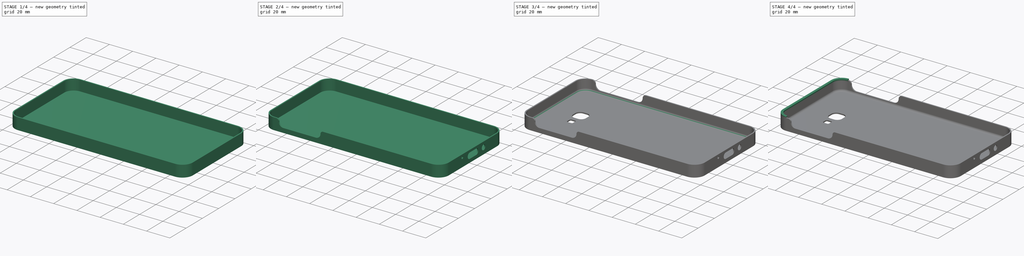
[diagram: build sequence overview — one tinted view per stage of 4, left to right]
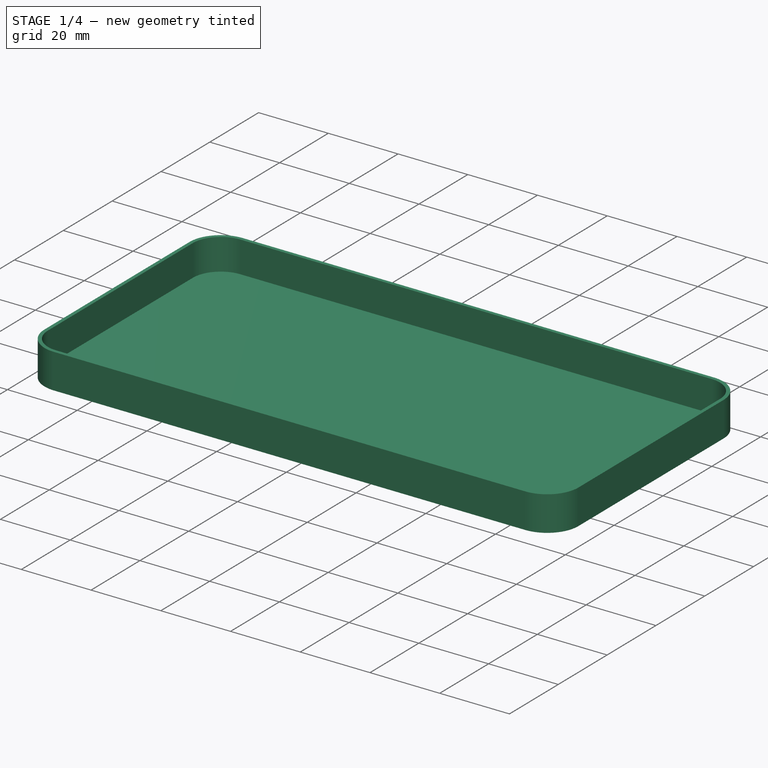
[diagram: stage 1 of 4 — iso view after this stage's code; geometry added in this stage tinted green]
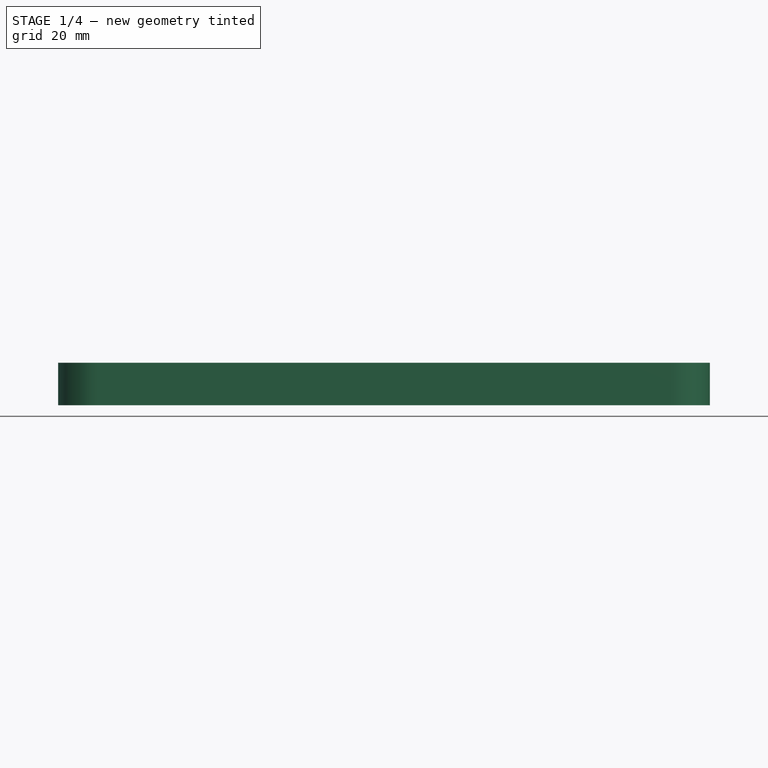
[diagram: stage 1 of 4 — front view after this stage's code; geometry added in this stage tinted green]
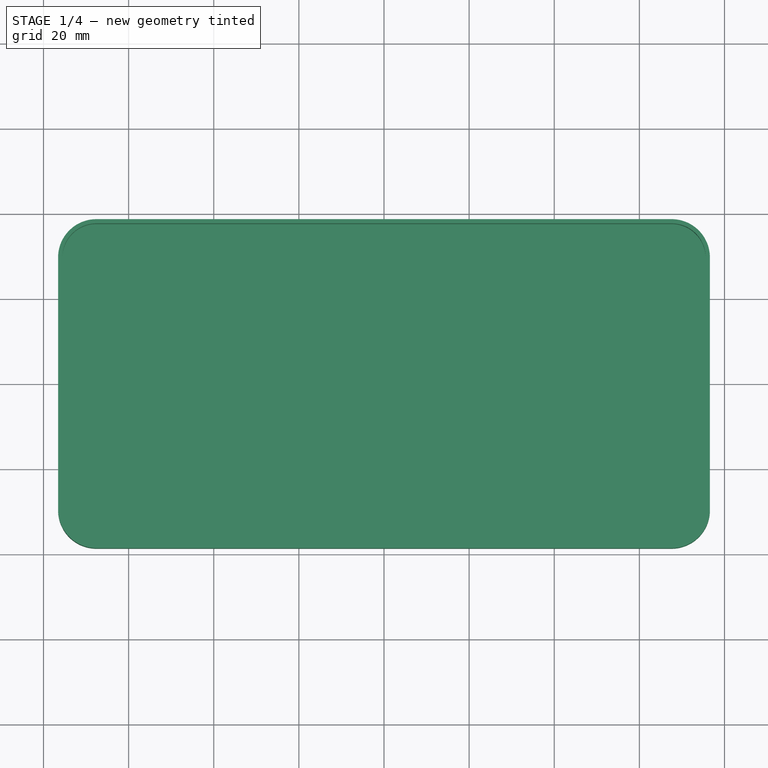
[diagram: stage 1 of 4 — top view after this stage's code; geometry added in this stage tinted green]
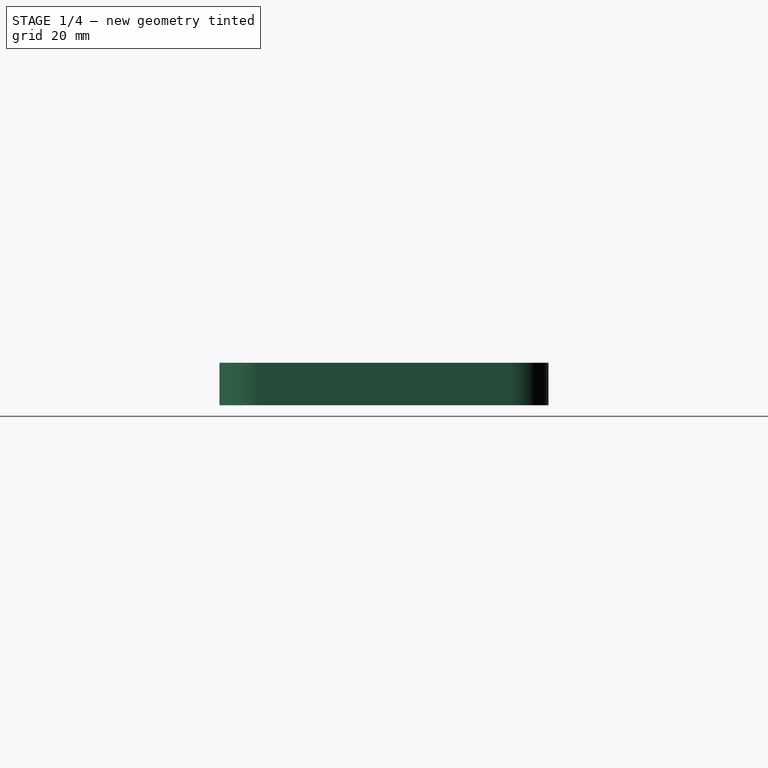
[diagram: stage 1 of 4 — right view after this stage's code; geometry added in this stage tinted green]
FCSTD DOCUMENT  (FreeCAD 0.18R16117 (Git))
Label: Coque telephone 3
License: All rights reserved
LicenseURL: http://en.wikipedia.org/wiki/All_rights_reserved
objects: Sketcher::SketchObject×7, PartDesign::Pocket×4, PartDesign::Pad×3, PartDesign::Fillet×2, PartDesign::Body×1
note: 24 computed .brp shape members not serialized (recipe doc carries the construction recipe); baked Part::Feature solids carry a one-line shape summary decoded from their .brp

FEATURE [Sketcher::SketchObject] Sketch
  MapMode = 5
  Support = -> [XY_Plane]
  sketch-geometry (16):
    g0: LineSegment StartX=-67.575 StartY=38.65 StartZ=0 EndX=67.575 EndY=38.65 EndZ=0
    g1: LineSegment StartX=76.575 StartY=29.65 StartZ=0 EndX=76.575 EndY=-29.65 EndZ=0
    g2: LineSegment StartX=67.575 StartY=-38.65 StartZ=0 EndX=-67.575 EndY=-38.65 EndZ=0
    g3: LineSegment StartX=-76.575 StartY=-29.65 StartZ=0 EndX=-76.575 EndY=29.65 EndZ=0
    g4: LineSegment StartX=-67.575 StartY=37.65 StartZ=0 EndX=67.575 EndY=37.65 EndZ=0
    g5: LineSegment StartX=75.575 StartY=29.65 StartZ=0 EndX=75.575 EndY=-29.65 EndZ=0
    g6: LineSegment StartX=67.575 StartY=-37.65 StartZ=0 EndX=-67.575 EndY=-37.65 EndZ=0
    g7: LineSegment StartX=-75.575 StartY=-29.65 StartZ=0 EndX=-75.575 EndY=29.65 EndZ=0
    g8: ArcOfCircle CenterX=-67.575 CenterY=29.65 CenterZ=0 NormalX=0 NormalY=0 NormalZ=1 AngleXU=0 Radius=8 StartAngle=1.5708 EndAngle=3.14159
    g9: ArcOfCircle CenterX=-67.575 CenterY=29.65 CenterZ=0 NormalX=0 NormalY=0 NormalZ=1 AngleXU=0 Radius=9 StartAngle=1.5708 EndAngle=3.14159
    g10: ArcOfCircle CenterX=-67.575 CenterY=-29.65 CenterZ=0 NormalX=0 NormalY=0 NormalZ=1 AngleXU=0 Radius=9 StartAngle=3.14159 EndAngle=4.71239
    g11: ArcOfCircle CenterX=67.575 CenterY=-29.65 CenterZ=0 NormalX=0 NormalY=0 NormalZ=1 AngleXU=0 Radius=9 StartAngle=4.71239 EndAngle=6.28319
    g12: ArcOfCircle CenterX=67.575 CenterY=29.65 CenterZ=0 NormalX=0 NormalY=0 NormalZ=1 AngleXU=0 Radius=9 StartAngle=0 EndAngle=1.5708
    g13: ArcOfCircle CenterX=67.575 CenterY=29.65 CenterZ=0 NormalX=0 NormalY=0 NormalZ=1 AngleXU=0 Radius=8 StartAngle=0 EndAngle=1.5708
    g14: ArcOfCircle CenterX=67.575 CenterY=-29.65 CenterZ=0 NormalX=0 NormalY=0 NormalZ=1 AngleXU=0 Radius=8 StartAngle=4.71239 EndAngle=6.28319
    g15: ArcOfCircle CenterX=-67.575 CenterY=-29.65 CenterZ=0 NormalX=0 NormalY=0 NormalZ=1 AngleXU=0 Radius=8 StartAngle=3.14159 EndAngle=4.71239
  constraints (34):
    c: Horizontal(g2)
    c: Horizontal(g4)
    c: Tangent(g4,g8) = 1.5708
    c: Tangent(g7,g8) = 1.5708
    c: Tangent(g0,g9) = 1.5708
    c: Tangent(g3,g9) = 1.5708
    c: Tangent(g2,g10) = 1.5708
    c: Tangent(g3,g10) = 1.5708
    c: Tangent(g1,g11) = 1.5708
    c: Tangent(g2,g11) = 1.5708
    c: Tangent(g0,g12) = 1.5708
    c: Tangent(g1,g12) = 1.5708
    c: Tangent(g4,g13) = 1.5708
    c: Tangent(g5,g13) = 1.5708
    c: Tangent(g5,g14) = 1.5708
    c: Tangent(g6,g14) = 1.5708
    c: Tangent(g6,g15) = 1.5708
    c: Tangent(g7,g15) = 1.5708
    c: DistanceX(g3,g10) = 9
    c: DistanceX(g7,g15) = 8
    c: Coincident(g15,g10)
    c: Vertical(g3)
    c: Symmetric(g7,g7,g-1)
    c: Horizontal(g6)
    c: Horizontal(g0)
    c: Vertical(g5)
    c: Coincident(g8,g9)
    c: Coincident(g12,g13)
    c: Coincident(g14,g11)
    c: Vertical(g10,g8)
    c: Vertical(g11,g12)
    c: Symmetric(g8,g12,g-2)
    c: DistanceX(g7,g5) = 151.15
    c: DistanceY(g6,g4) = 75.3
FEATURE [PartDesign::Pad] Pad  label="Murs"
  Length = 10
  Length2 = 100
  Profile = -> Sketch
  Type = 0
FEATURE [Sketcher::SketchObject] Sketch001
  ExternalGeometry = -> [Pad]
  MapMode = 5
  Placement = pos=(0,0,0) rot=(1,0,0;3.14159rad)
  Support = -> [Pad]
  sketch-geometry (9):
    g0: ArcOfCircle CenterX=-67.575 CenterY=29.65 CenterZ=0 NormalX=0 NormalY=0 NormalZ=1 AngleXU=0 Radius=9 StartAngle=1.5708 EndAngle=3.14159
    g1: ArcOfCircle CenterX=-67.575 CenterY=-29.65 CenterZ=0 NormalX=0 NormalY=0 NormalZ=1 AngleXU=0 Radius=9 StartAngle=3.14159 EndAngle=4.71239
    g2: ArcOfCircle CenterX=67.575 CenterY=-29.65 CenterZ=0 NormalX=0 NormalY=0 NormalZ=1 AngleXU=0 Radius=9 StartAngle=4.71239 EndAngle=6.28318
    g3: ArcOfCircle CenterX=67.575 CenterY=29.65 CenterZ=0 NormalX=0 NormalY=0 NormalZ=1 AngleXU=0 Radius=9 StartAngle=-9e-16 EndAngle=1.5708
    g4: LineSegment [constr] StartX=-67.575 StartY=29.65 StartZ=0 EndX=-76.575 EndY=29.65 EndZ=0
    g5: LineSegment StartX=-67.575 StartY=38.65 StartZ=0 EndX=67.575 EndY=38.65 EndZ=0
    g6: LineSegment StartX=-67.575 StartY=-38.65 StartZ=0 EndX=67.575 EndY=-38.65 EndZ=0
    g7: LineSegment StartX=76.575 StartY=-29.65 StartZ=0 EndX=76.575 EndY=29.65 EndZ=0
    g8: LineSegment StartX=-76.575 StartY=29.65 StartZ=0 EndX=-76.575 EndY=-29.65 EndZ=0
  constraints (25):
    c: Coincident(g0,g-3)
    c: Vertical(g0,g0)
    c: Coincident(g-10,g1)
    c: Coincident(g4,g0)
    c: Coincident(g-4,g4)
    c: Coincident(g0,g4)
    c: Horizontal(g3,g0)
    c: Horizontal(g3,g0)
    c: Coincident(g3,g-7)
    c: Equal(g3,g0)
    c: Coincident(g2,g-9)
    c: Equal(g2,g0)
    c: Vertical(g2,g3)
    c: Horizontal(g2,g-10)
    c: Equal(g1,g0)
    c: Vertical(g1,g1)
    c: Horizontal(g1,g1)
    c: Coincident(g5,g0)
    c: Coincident(g5,g3)
    c: Coincident(g7,g3)
    c: Coincident(g7,g2)
    c: Coincident(g6,g2)
    c: Coincident(g6,g1)
    c: Coincident(g8,g1)
    c: Coincident(g8,g0)
FEATURE [PartDesign::Pad] Pad001  label="Fond"
  BaseFeature = -> Pad
  Length = 1
  Length2 = 100
  Profile = -> Sketch001
  Reversed = true
  Type = 0
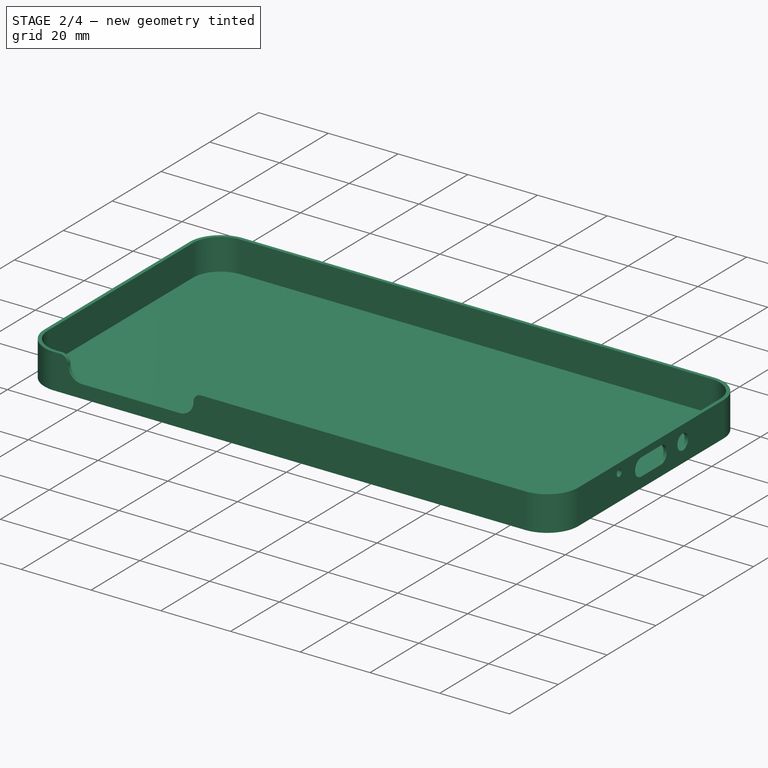
[diagram: stage 2 of 4 — iso view after this stage's code; geometry added in this stage tinted green]
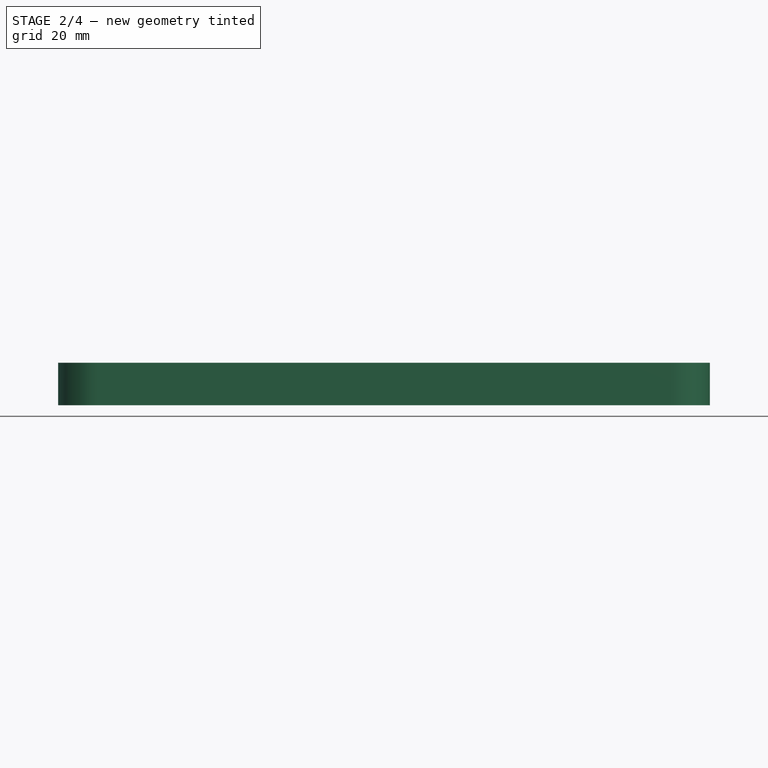
[diagram: stage 2 of 4 — front view after this stage's code; geometry added in this stage tinted green]
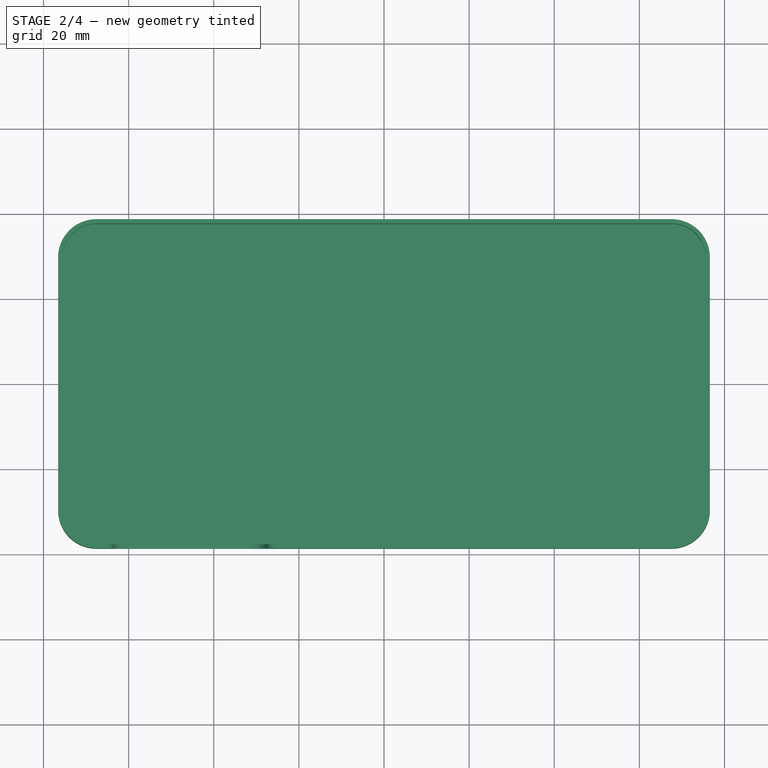
[diagram: stage 2 of 4 — top view after this stage's code; geometry added in this stage tinted green]
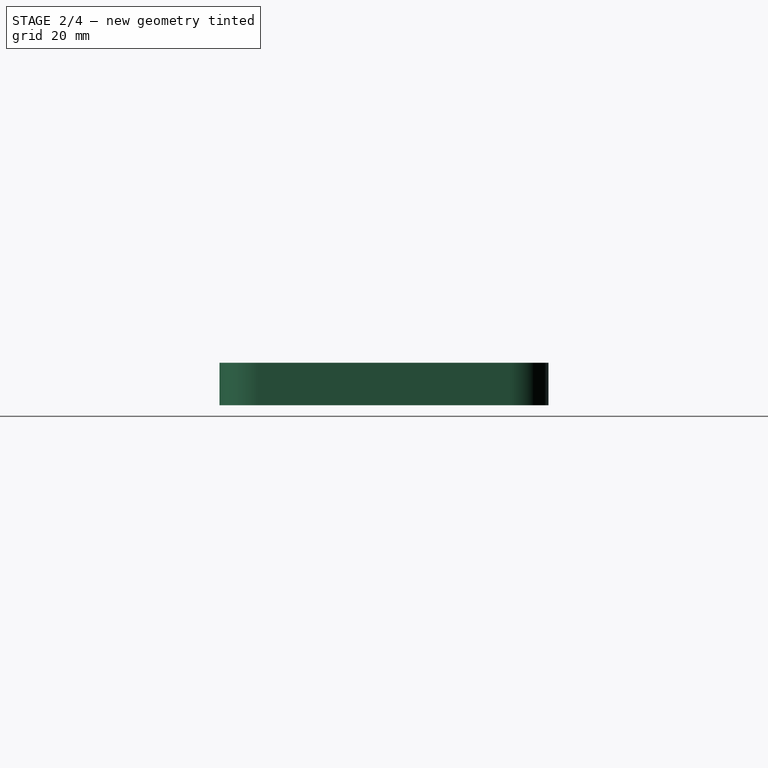
[diagram: stage 2 of 4 — right view after this stage's code; geometry added in this stage tinted green]
FEATURE [Sketcher::SketchObject] Sketch002
  ExternalGeometry = -> [Pad001]
  MapMode = 5
  Placement = pos=(0,-38.65,0) rot=(1,0,0;1.5708rad)
  Support = -> [Pad001]
  sketch-geometry (6):
    g0: ArcOfCircle CenterX=-59.575 CenterY=7.8 CenterZ=0 NormalX=0 NormalY=0 NormalZ=1 AngleXU=0 Radius=4 StartAngle=3.14159 EndAngle=4.71239
    g1: ArcOfCircle CenterX=-31.575 CenterY=7.8 CenterZ=0 NormalX=0 NormalY=0 NormalZ=1 AngleXU=0 Radius=4 StartAngle=4.71239 EndAngle=6.28319
    g2: LineSegment StartX=-59.575 StartY=3.8 StartZ=0 EndX=-31.575 EndY=3.8 EndZ=0
    g3: ArcOfCircle CenterX=-65.775 CenterY=7.8 CenterZ=0 NormalX=0 NormalY=0 NormalZ=1 AngleXU=0 Radius=2.2 StartAngle=0 EndAngle=1.5708
    g4: ArcOfCircle CenterX=-25.375 CenterY=7.8 CenterZ=0 NormalX=0 NormalY=0 NormalZ=1 AngleXU=0 Radius=2.2 StartAngle=1.5708 EndAngle=3.14159
    g5: LineSegment StartX=-65.775 StartY=10 StartZ=0 EndX=-25.375 EndY=10 EndZ=0
  constraints (20):
    c: Tangent(g0,g2) = -1.5708
    c: Tangent(g2,g1) = -1.5708
    c: Horizontal(g2)
    c: DistanceY(g1,g1) = 4
    c: DistanceX(g0,g1) = 28
    c: DistanceX(g-3,g0) = 17
    c: DistanceY(g-3,g0) = 2.8
    c: Horizontal(g0,g0)
    c: Equal(g1,g0)
    c: Horizontal(g1,g1)
    c: Coincident(g4,g1)
    c: PointOnObject(g4,g-4)
    c: Coincident(g3,g0)
    c: PointOnObject(g3,g-4)
    c: Vertical(g3,g3)
    c: Horizontal(g3,g0)
    c: Horizontal(g1,g4)
    c: Vertical(g4,g4)
    c: Coincident(g5,g4)
    c: Coincident(g5,g3)
FEATURE [PartDesign::Pocket] Pocket  label="Percage gauche"
  BaseFeature = -> Pad001
  Length = 5
  Length2 = 100
  Profile = -> Sketch002
  Type = 0
FEATURE [Sketcher::SketchObject] Sketch003
  ExternalGeometry = -> [Pocket]
  MapMode = 5
  Placement = pos=(76.575,0,0) rot=(0.57735,0.57735,0.57735;2.0944rad)
  Support = -> [Pocket]
  sketch-geometry (6):
    g0: ArcOfCircle CenterX=-4 CenterY=5.5 CenterZ=0 NormalX=0 NormalY=0 NormalZ=1 AngleXU=0 Radius=2.5 StartAngle=1.5708 EndAngle=4.71239
    g1: ArcOfCircle CenterX=4 CenterY=5.5 CenterZ=0 NormalX=0 NormalY=0 NormalZ=1 AngleXU=0 Radius=2.5 StartAngle=4.71239 EndAngle=7.85398
    g2: LineSegment StartX=-4 StartY=3 StartZ=0 EndX=4 EndY=3 EndZ=0
    g3: LineSegment StartX=-4 StartY=8 StartZ=0 EndX=4 EndY=8 EndZ=0
    g4: Circle CenterX=13 CenterY=5.5 CenterZ=0 NormalX=0 NormalY=0 NormalZ=1 AngleXU=0 Radius=2.2
    g5: Circle CenterX=-13 CenterY=7.4 CenterZ=0 NormalX=0 NormalY=0 NormalZ=1 AngleXU=0 Radius=1
  constraints (19):
    c: DistanceX(g-1,g4) = 13
    c: Coincident(g0,g3)
    c: Coincident(g1,g3)
    c: Coincident(g0,g2)
    c: Coincident(g1,g2)
    c: Vertical(g1,g1)
    c: Vertical(g1,g1)
    c: Vertical(g0,g0)
    c: Vertical(g0,g0)
    c: Horizontal(g2)
    c: DistanceY(g0,g0) = 5
    c: DistanceX(g0,g1) = 8
    c: Symmetric(g0,g1,g-2)
    c: DistanceY(g-1,g1) = 3
    c: Radius(g4) = 2.2
    c: Radius(g5) = 1
    c: DistanceX(g5,g-1) = 13
    c: DistanceY(g-1,g5) = 7.4
    c: DistanceY(g-1,g4) = 5.5
FEATURE [PartDesign::Pocket] Pocket001  label="Percage dessous"
  BaseFeature = -> Pocket
  Length = 5
  Length2 = 100
  Profile = -> Sketch003
  Type = 0
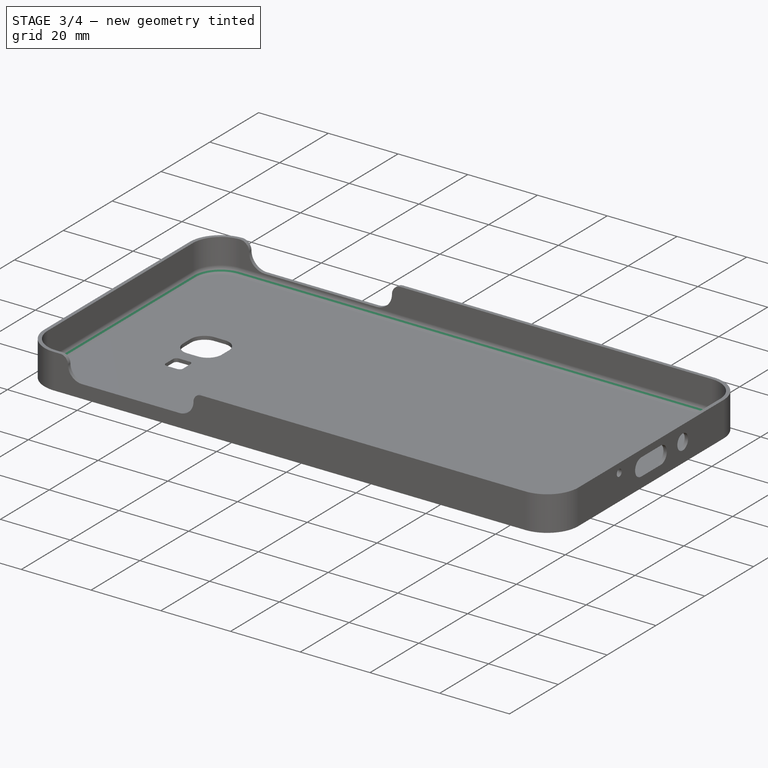
[diagram: stage 3 of 4 — iso view after this stage's code; geometry added in this stage tinted green]
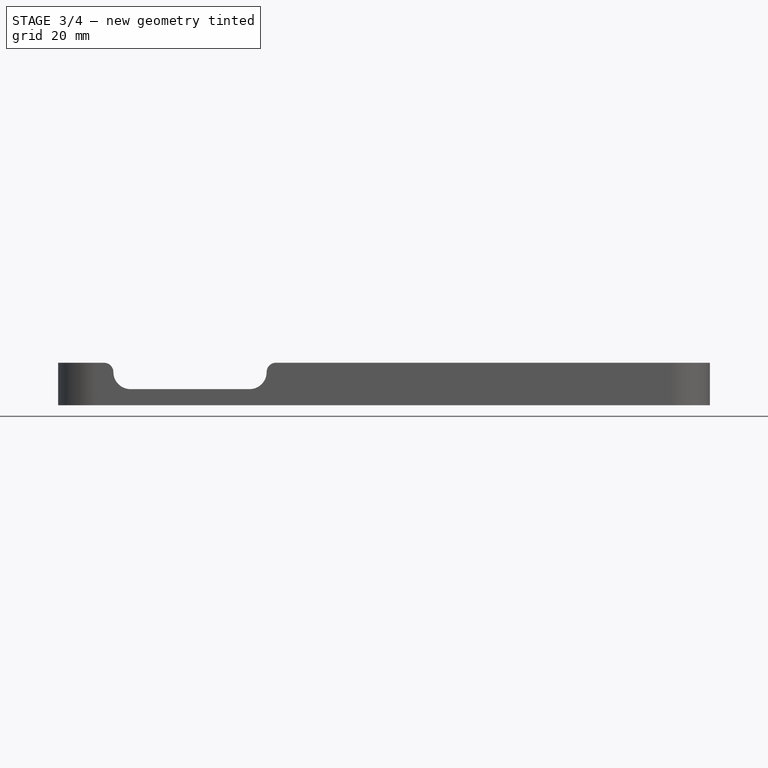
[diagram: stage 3 of 4 — front view after this stage's code; geometry added in this stage tinted green]
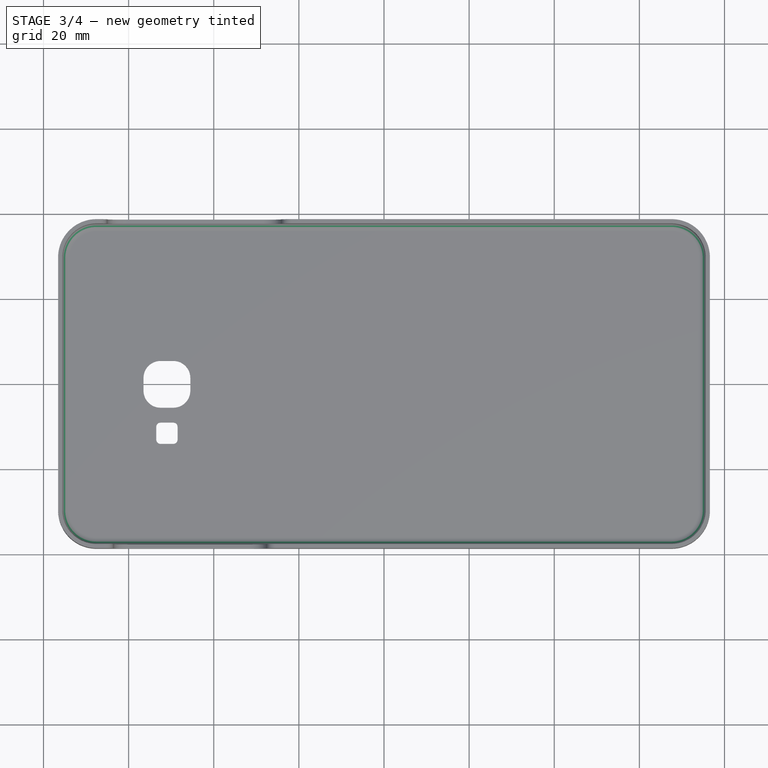
[diagram: stage 3 of 4 — top view after this stage's code; geometry added in this stage tinted green]
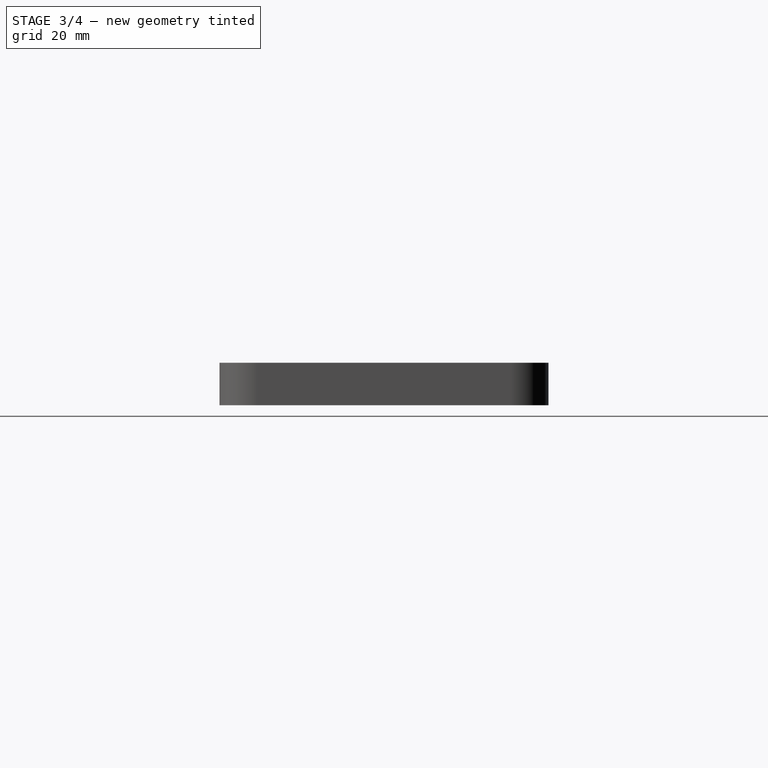
[diagram: stage 3 of 4 — right view after this stage's code; geometry added in this stage tinted green]
FEATURE [Sketcher::SketchObject] Sketch004
  ExternalGeometry = -> [Pocket001]
  MapMode = 5
  Placement = pos=(0,38.65,0) rot=(0,0.707107,0.707107;3.14159rad)
  Support = -> [Pocket001]
  sketch-geometry (6):
    g0: ArcOfCircle CenterX=60.575 CenterY=7.5 CenterZ=0 NormalX=0 NormalY=0 NormalZ=1 AngleXU=0 Radius=4.5 StartAngle=4.71239 EndAngle=6.28319
    g1: LineSegment StartX=28.575 StartY=3 StartZ=0 EndX=60.575 EndY=3 EndZ=0
    g2: ArcOfCircle CenterX=28.575 CenterY=7.5 CenterZ=0 NormalX=0 NormalY=0 NormalZ=1 AngleXU=0 Radius=4.5 StartAngle=3.14159 EndAngle=4.71239
    g3: ArcOfCircle CenterX=21.575 CenterY=7.5 CenterZ=0 NormalX=0 NormalY=0 NormalZ=1 AngleXU=0 Radius=2.5 StartAngle=0 EndAngle=1.5708
    g4: ArcOfCircle CenterX=67.575 CenterY=7.5 CenterZ=0 NormalX=0 NormalY=0 NormalZ=1 AngleXU=0 Radius=2.5 StartAngle=1.5708 EndAngle=3.14159
    g5: LineSegment StartX=21.575 StartY=10 StartZ=0 EndX=67.575 EndY=10 EndZ=0
  constraints (18):
    c: Coincident(g0,g1)
    c: Horizontal(g1)
    c: Coincident(g1,g2)
    c: Horizontal(g2,g0)
    c: DistanceX(g1,g1) = 32
    c: Vertical(g2,g1)
    c: Vertical(g0,g0)
    c: Horizontal(g2,g2)
    c: Horizontal(g0,g0)
    c: Radius(g2) = 4.5
    c: Coincident(g3,g2)
    c: Horizontal(g3,g2)
    c: Vertical(g3,g3)
    c: Coincident(g4,g0)
    c: Horizontal(g4,g0)
    c: Vertical(g4,g4)
    c: Coincident(g5,g3)
    c: Coincident(g5,g4)
FEATURE [PartDesign::Pocket] Pocket002  label="Percage droite"
  BaseFeature = -> Pocket001
  Length = 5
  Length2 = 100
  Profile = -> Sketch004
  Type = 0
FEATURE [PartDesign::Fillet] Fillet  label="Fillet interieur"
  Base = -> Pocket002 [Edge93]
  BaseFeature = -> Pocket002
  Radius = 1.7
FEATURE [Sketcher::SketchObject] Sketch005
  MapMode = 5
  Placement = pos=(0,0,0) rot=(1,0,0;3.14159rad)
  Support = -> [Fillet]
  sketch-geometry (17):
    g0: LineSegment [constr] StartX=-51 StartY=5.5 StartZ=0 EndX=-51 EndY=9 EndZ=0
    g1: LineSegment StartX=-52.5 StartY=-5.5 StartZ=0 EndX=-49.5 EndY=-5.5 EndZ=0
    g2: LineSegment StartX=-45.5 StartY=-1.5 StartZ=0 EndX=-45.5 EndY=1.5 EndZ=0
    g3: LineSegment StartX=-49.5 StartY=5.5 StartZ=0 EndX=-52.5 EndY=5.5 EndZ=0
    g4: LineSegment StartX=-56.5 StartY=1.5 StartZ=0 EndX=-56.5 EndY=-1.5 EndZ=0
    g5: ArcOfCircle CenterX=-52.5 CenterY=1.5 CenterZ=0 NormalX=0 NormalY=0 NormalZ=1 AngleXU=0 Radius=4 StartAngle=1.5708 EndAngle=3.14159
    g6: ArcOfCircle CenterX=-52.5 CenterY=-1.5 CenterZ=0 NormalX=0 NormalY=0 NormalZ=1 AngleXU=0 Radius=4 StartAngle=3.14159 EndAngle=4.71239
    g7: ArcOfCircle CenterX=-49.5 CenterY=-1.5 CenterZ=0 NormalX=0 NormalY=0 NormalZ=1 AngleXU=0 Radius=4 StartAngle=4.71239 EndAngle=6.28319
    g8: ArcOfCircle CenterX=-49.5 CenterY=1.5 CenterZ=0 NormalX=0 NormalY=0 NormalZ=1 AngleXU=0 Radius=4 StartAngle=0 EndAngle=1.5708
    g9: LineSegment StartX=-52.5 StartY=9 StartZ=0 EndX=-49.5 EndY=9 EndZ=0
    g10: LineSegment StartX=-48.5 StartY=10 StartZ=0 EndX=-48.5 EndY=13 EndZ=0
    g11: LineSegment StartX=-49.5 StartY=14 StartZ=0 EndX=-52.5 EndY=14 EndZ=0
    g12: LineSegment StartX=-53.5 StartY=13 StartZ=0 EndX=-53.5 EndY=10 EndZ=0
    g13: ArcOfCircle CenterX=-52.5 CenterY=13 CenterZ=0 NormalX=0 NormalY=0 NormalZ=1 AngleXU=0 Radius=1 StartAngle=1.5708 EndAngle=3.14159
    g14: ArcOfCircle CenterX=-52.5 CenterY=10 CenterZ=0 NormalX=0 NormalY=0 NormalZ=1 AngleXU=0 Radius=1 StartAngle=3.14159 EndAngle=4.71239
    g15: ArcOfCircle CenterX=-49.5 CenterY=10 CenterZ=0 NormalX=0 NormalY=0 NormalZ=1 AngleXU=0 Radius=1 StartAngle=4.71239 EndAngle=6.28319
    g16: ArcOfCircle CenterX=-49.5 CenterY=13 CenterZ=0 NormalX=0 NormalY=0 NormalZ=1 AngleXU=0 Radius=1 StartAngle=7e-16 EndAngle=1.5708
  constraints (41):
    c: DistanceY(g0,g0) = 3.5
    c: Horizontal(g1)
    c: Horizontal(g3)
    c: Vertical(g2)
    c: Tangent(g3,g5) = -1.5708
    c: Tangent(g4,g5) = -1.5708
    c: Tangent(g1,g6) = -1.5708
    c: Tangent(g4,g6) = -1.5708
    c: Tangent(g1,g7) = -1.5708
    c: Tangent(g2,g7) = -1.5708
    c: Tangent(g2,g8) = -1.5708
    c: Tangent(g3,g8) = -1.5708
    c: DistanceX(g4,g2) = 11
    c: DistanceX(g1,g1) = 3
    c: Equal(g4,g1)
    c: Equal(g1,g3)
    c: Equal(g3,g2)
    c: Vertical(g5,g6)
    c: Horizontal(g11)
    c: Vertical(g10)
    c: Vertical(g12)
    c: Tangent(g11,g13) = -1.5708
    c: Tangent(g12,g13) = -1.5708
    c: Tangent(g9,g14) = -1.5708
    c: Tangent(g12,g14) = -1.5708
    c: Tangent(g9,g15) = -1.5708
    c: Tangent(g10,g15) = -1.5708
    c: Tangent(g10,g16) = -1.5708
    c: Tangent(g11,g16) = -1.5708
    c: DistanceY(g9,g11) = 5
    c: DistanceY(g10,g10) = 3
    c: Equal(g10,g11)
    c: Equal(g11,g12)
    c: Equal(g12,g9)
    c: Horizontal(g13,g16)
    c: Symmetric(g4,g4,g-1)
    c: Symmetric(g9,g9,g0)
    c: Symmetric(g3,g3,g0)
    c: PointOnObject(g0,g3)
    c: PointOnObject(g0,g9)
    c: DistanceX(g2,g-1) = 45.5
FEATURE [PartDesign::Pocket] Pocket003  label="Percage fond"
  BaseFeature = -> Fillet
  Length = 5
  Length2 = 100
  Profile = -> Sketch005
  Type = 0
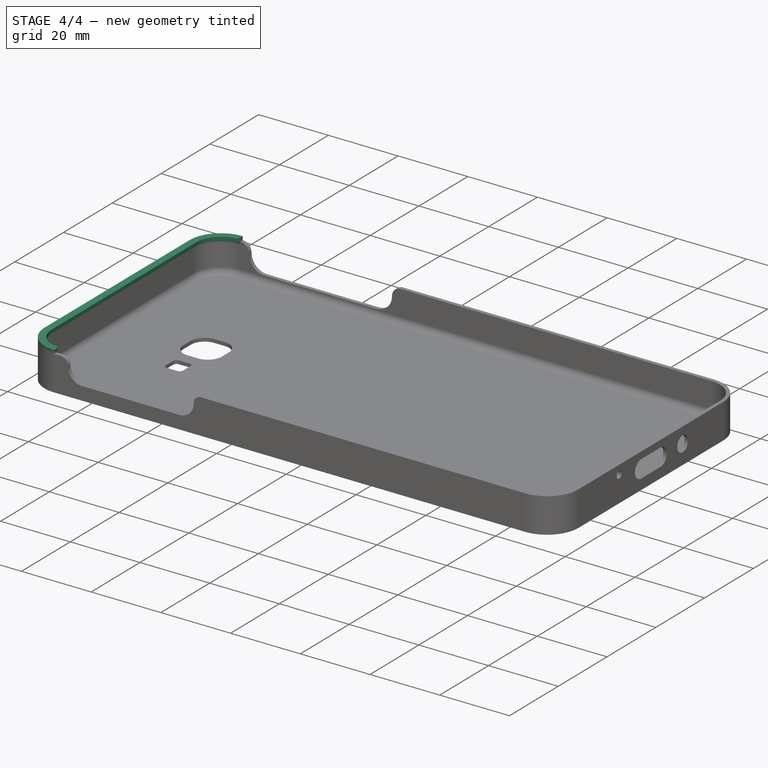
[diagram: stage 4 of 4 — iso view after this stage's code; geometry added in this stage tinted green]
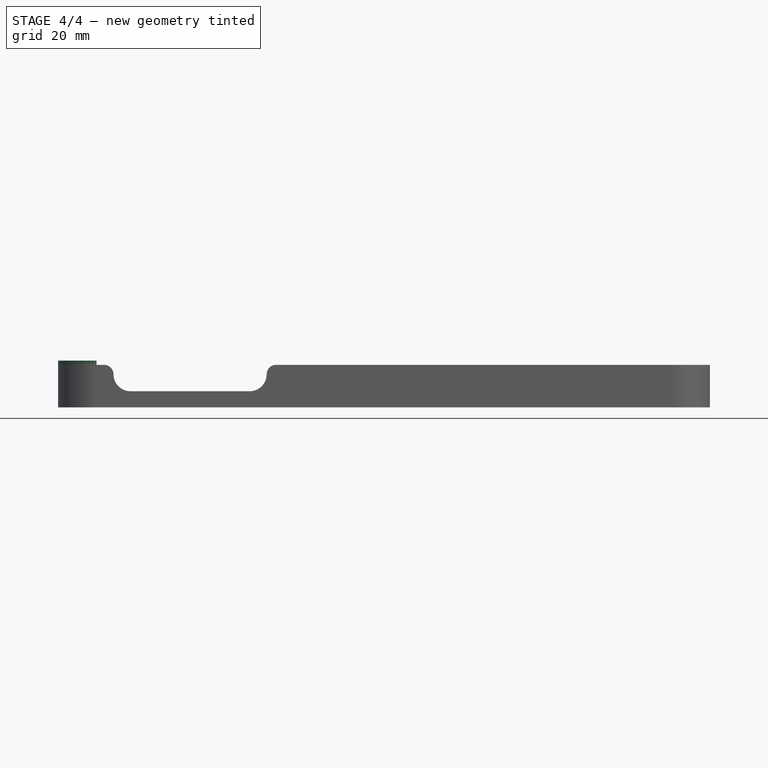
[diagram: stage 4 of 4 — front view after this stage's code; geometry added in this stage tinted green]
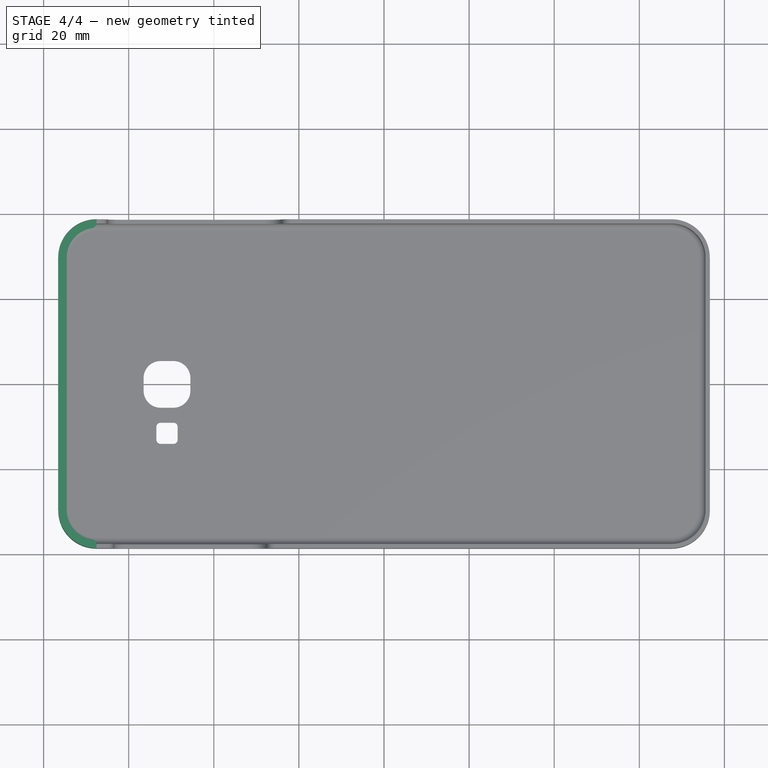
[diagram: stage 4 of 4 — top view after this stage's code; geometry added in this stage tinted green]
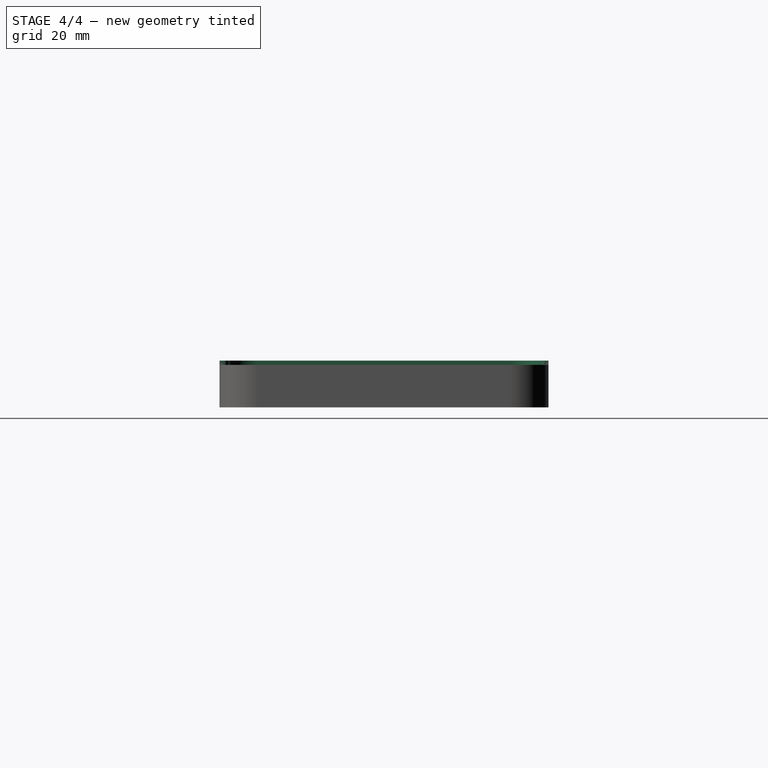
[diagram: stage 4 of 4 — right view after this stage's code; geometry added in this stage tinted green]
FEATURE [Sketcher::SketchObject] Sketch006
  ExternalGeometry = -> [Pocket003]
  MapMode = 5
  Placement = pos=(0,0,10) rot=(0,0,1;0rad)
  Support = -> [Pocket003]
  sketch-geometry (10):
    g0: ArcOfCircle CenterX=-67.575 CenterY=-29.65 CenterZ=0 NormalX=0 NormalY=0 NormalZ=1 AngleXU=0 Radius=9 StartAngle=3.14159 EndAngle=4.71239
    g1: ArcOfCircle CenterX=-67.575 CenterY=29.65 CenterZ=0 NormalX=0 NormalY=0 NormalZ=1 AngleXU=0 Radius=9 StartAngle=1.5708 EndAngle=3.14159
    g2: LineSegment StartX=-76.575 StartY=29.65 StartZ=0 EndX=-76.575 EndY=-29.65 EndZ=0
    g3: ArcOfCircle CenterX=-67.575 CenterY=-29.65 CenterZ=0 NormalX=0 NormalY=0 NormalZ=1 AngleXU=0 Radius=7 StartAngle=3.14159 EndAngle=4.56552
    g4: ArcOfCircle CenterX=-67.575 CenterY=29.65 CenterZ=0 NormalX=0 NormalY=0 NormalZ=1 AngleXU=0 Radius=7 StartAngle=1.71767 EndAngle=3.14159
    g5: LineSegment StartX=-67.575 StartY=37.7617 StartZ=0 EndX=-67.575 EndY=38.65 EndZ=0
    g6: LineSegment StartX=-74.575 StartY=29.65 StartZ=0 EndX=-74.575 EndY=-29.65 EndZ=0
    g7: LineSegment StartX=-67.575 StartY=-38.65 StartZ=0 EndX=-67.575 EndY=-37.7617 EndZ=0
    g8: ArcOfCircle CenterX=-68.775 CenterY=-37.7617 CenterZ=0 NormalX=0 NormalY=0 NormalZ=1 AngleXU=0 Radius=1.2 StartAngle=2.1116e-12 EndAngle=1.42393
    g9: ArcOfCircle CenterX=-68.775 CenterY=37.7617 CenterZ=0 NormalX=0 NormalY=0 NormalZ=1 AngleXU=0 Radius=1.2 StartAngle=4.85926 EndAngle=6.28319
  constraints (26):
    c: Coincident(g1,g2)
    c: Coincident(g1,g-4)
    c: Coincident(g2,g-5)
    c: Coincident(g0,g2)
    c: Coincident(g-5,g0)
    c: Coincident(g1,g-4)
    c: Vertical(g1,g1)
    c: Coincident(g4,g1)
    c: Horizontal(g4,g1)
    c: DistanceX(g1,g4) = 2
    c: Vertical(g5)
    c: Coincident(g5,g1)
    c: Coincident(g3,g0)
    c: Horizontal(g3,g0)
    c: Coincident(g6,g3)
    c: Coincident(g6,g4)
    c: Vertical(g6)
    c: Coincident(g0,g7)
    c: Tangent(g7,g8) = -1.5708
    c: Tangent(g3,g8) = 1.5708
    c: Tangent(g4,g9) = 1.5708
    c: Tangent(g5,g9) = -1.5708
    c: Radius(g9) = 1.2
    c: Vertical(g7)
    c: Vertical(g0,g-5)
    c: Equal(g8,g9)
FEATURE [PartDesign::Pad] Pad002
  BaseFeature = -> Pocket003
  Length = 1
  Length2 = 100
  Profile = -> Sketch006
  Type = 0
FEATURE [PartDesign::Fillet] Fillet001
  Base = -> Pad002 [Edge50]
  BaseFeature = -> Pad002
  Radius = 0.9
FEATURE [PartDesign::Body] Body
  Group = -> [Sketch,Pad,Sketch001,Pad001,Sketch002,Pocket,Sketch003,Pocket001,Sketch004,Pocket002,Fillet,Sketch005,Pocket003,Sketch006,Pad002,Fillet001]
  Origin = -> Origin
  Tip = -> Fillet001
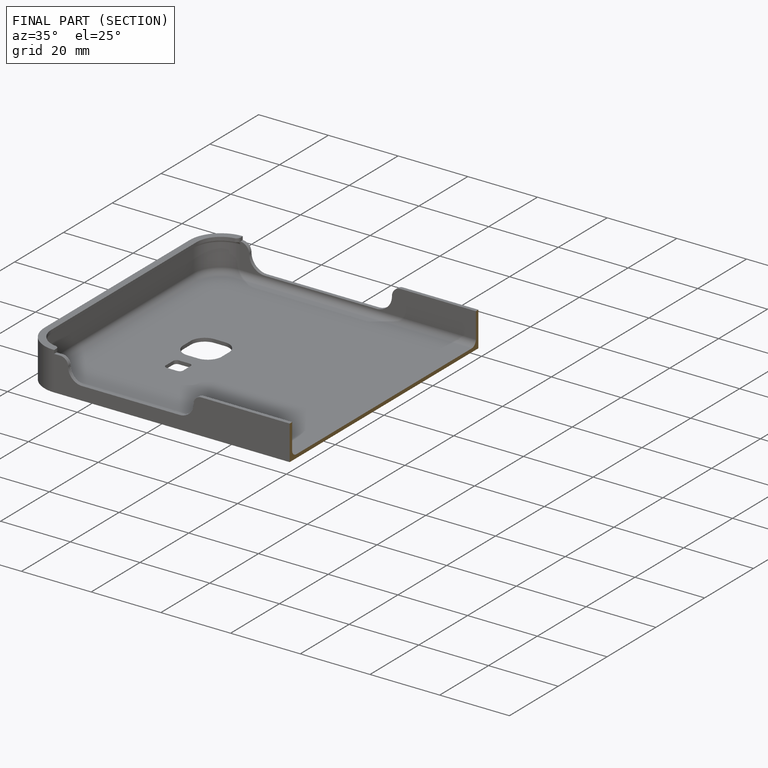
[diagram: finished part — half-section view (interior)]
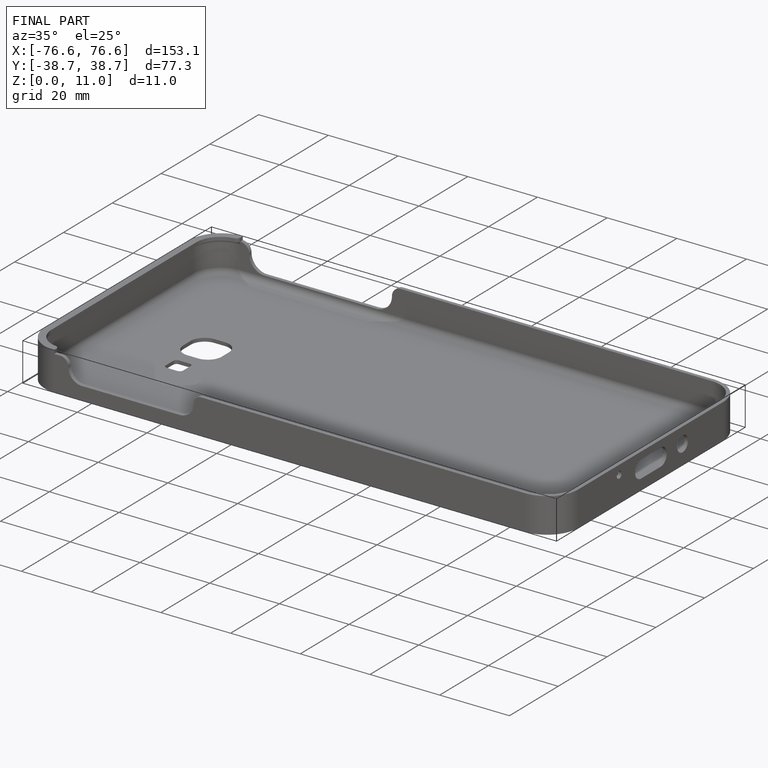
[diagram: finished part — iso view with bounding-box wireframe]
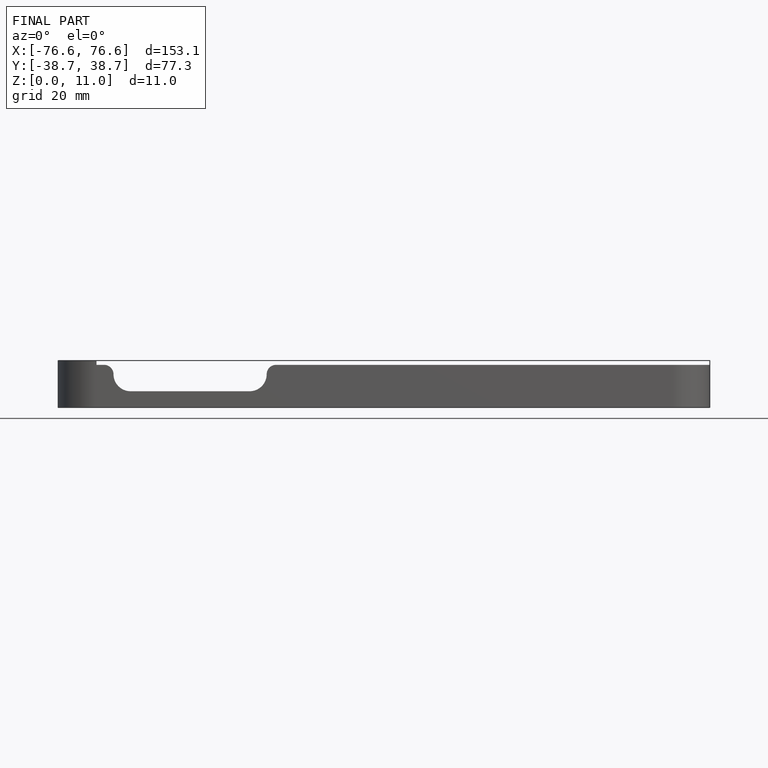
[diagram: finished part — front view with bounding-box wireframe]
